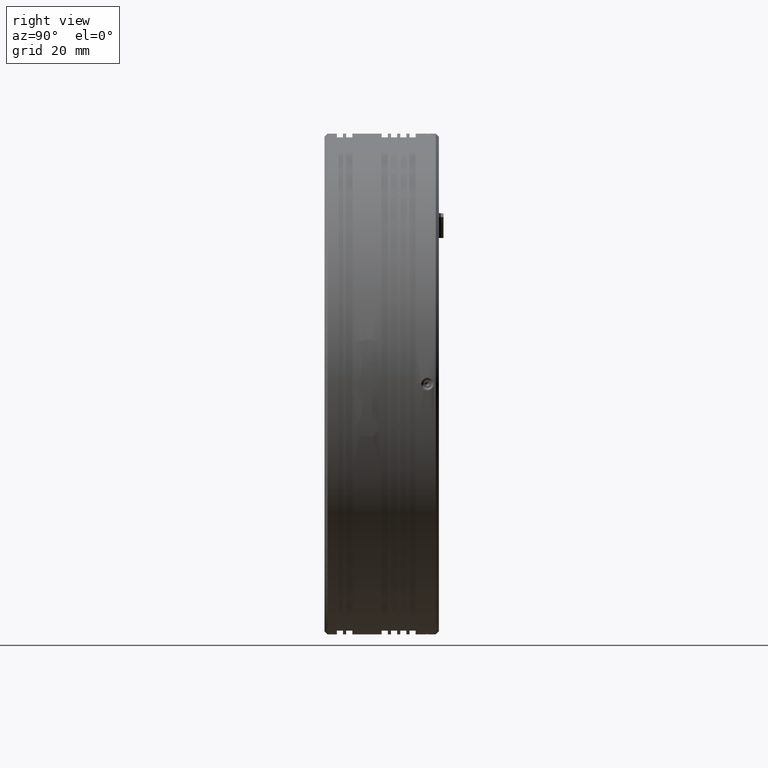
[diagram: clean part render]
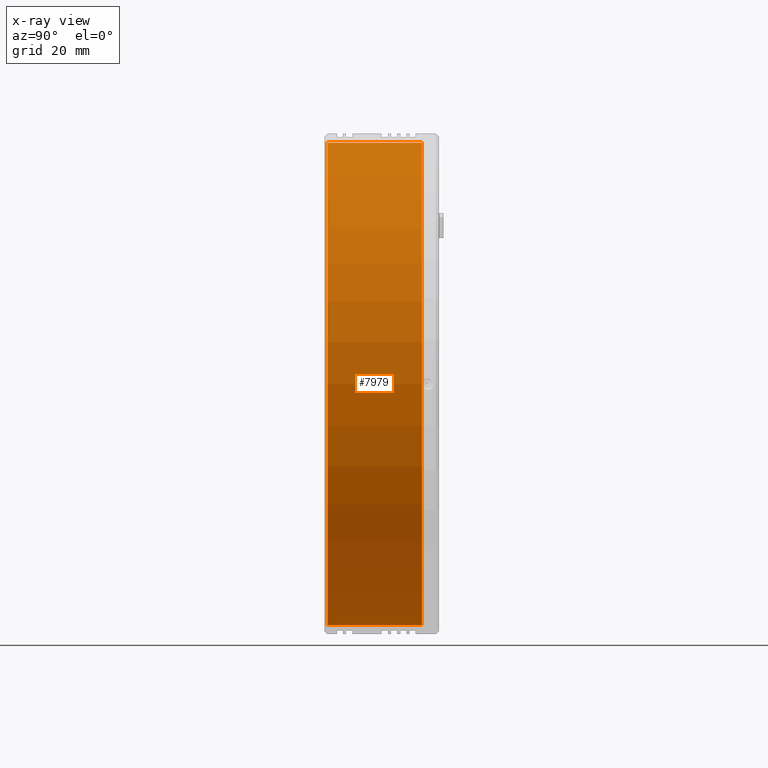
[diagram: x-ray — body ghosted, one internal face saturated and labeled with its STEP entity id]
A machine part, right view, then the same camera in x-ray: the body is ghosted and one INTERNAL B-rep face — a face not visible from any outside direction — is saturated and labeled: STEP entity #7979.
In plain terms, the highlighted cylindrical surface (partial cylindrical patch) has radius 78 mm, axis along (-0, -1, -0).
Its self-contained STEP definition (entity closure, byte-faithful):
#17 = VERTEX_POINT ( 'NONE', #9695 ) ;
#118 = EDGE_CURVE ( 'NONE', #12196, #10430, #817, .T. ) ;
#180 = EDGE_CURVE ( 'NONE', #3098, #17, #9964, .T. ) ;
#817 = CIRCLE ( 'NONE', #9626, 78.00000000000000000 ) ;
#1812 = ORIENTED_EDGE ( 'NONE', *, *, #118, .F. ) ;
#2438 = EDGE_CURVE ( 'NONE', #17, #12196, #10300, .T. ) ;
#2576 = EDGE_CURVE ( 'NONE', #3098, #10430, #7780, .T. ) ;
#2726 = DIRECTION ( 'NONE',  ( -0.0000000000000000000, -1.000000000000000000, -0.0000000000000000000 ) ) ;
#2910 = FACE_OUTER_BOUND ( 'NONE', #13012, .T. ) ;
#3098 = VERTEX_POINT ( 'NONE', #7191 ) ;
#3446 = CARTESIAN_POINT ( 'NONE',  ( -9.785022266880025300, -37.73097191106735000, 78.00000000000000000 ) ) ;
#3976 = CYLINDRICAL_SURFACE ( 'NONE', #11308, 78.00000000000000000 ) ;
#5071 = VECTOR ( 'NONE', #6351, 1000.000000000000000 ) ;
#6351 = DIRECTION ( 'NONE',  ( -0.0000000000000000000, -1.000000000000000000, -0.0000000000000000000 ) ) ;
#6495 = DIRECTION ( 'NONE',  ( -0.0000000000000000000, -1.000000000000000000, -0.0000000000000000000 ) ) ;
#6577 = CARTESIAN_POINT ( 'NONE',  ( -9.785022266880036000, -37.73097191106735000, -78.00000000000000000 ) ) ;
#7122 = DIRECTION ( 'NONE',  ( 0.0000000000000000000, 0.0000000000000000000, -1.000000000000000000 ) ) ;
#7191 = CARTESIAN_POINT ( 'NONE',  ( -9.785022266880036000, 22.37111437184006500, -78.00000000000000000 ) ) ;
#7601 = VECTOR ( 'NONE', #6495, 1000.000000000000000 ) ;
#7699 = DIRECTION ( 'NONE',  ( 0.0000000000000000000, 0.0000000000000000000, -1.000000000000000000 ) ) ;
#7744 = CARTESIAN_POINT ( 'NONE',  ( -9.785022266880036000, -37.73097191106735000, 0.0000000000000000000 ) ) ;
#7771 = ORIENTED_EDGE ( 'NONE', *, *, #180, .F. ) ;
#7780 = LINE ( 'NONE', #6577, #5071 ) ;
#7822 = ORIENTED_EDGE ( 'NONE', *, *, #2576, .T. ) ;
#7979 = ADVANCED_FACE ( 'NONE', ( #2910 ), #3976, .F. ) ;
#9452 = AXIS2_PLACEMENT_3D ( 'NONE', #10918, #10775, #7699 ) ;
#9626 = AXIS2_PLACEMENT_3D ( 'NONE', #12680, #12729, #12774 ) ;
#9695 = CARTESIAN_POINT ( 'NONE',  ( -9.785022266880025300, 22.37111437184006500, 78.00000000000000000 ) ) ;
#9964 = CIRCLE ( 'NONE', #9452, 78.00000000000000000 ) ;
#9971 = CARTESIAN_POINT ( 'NONE',  ( -9.785022266880036000, -8.128885628159936900, -78.00000000000000000 ) ) ;
#10300 = LINE ( 'NONE', #3446, #7601 ) ;
#10430 = VERTEX_POINT ( 'NONE', #9971 ) ;
#10775 = DIRECTION ( 'NONE',  ( -0.0000000000000000000, -1.000000000000000000, -0.0000000000000000000 ) ) ;
#10918 = CARTESIAN_POINT ( 'NONE',  ( -9.785022266880036000, 22.37111437184006500, 0.0000000000000000000 ) ) ;
#11308 = AXIS2_PLACEMENT_3D ( 'NONE', #7744, #2726, #7122 ) ;
#11920 = ORIENTED_EDGE ( 'NONE', *, *, #2438, .F. ) ;
#12196 = VERTEX_POINT ( 'NONE', #12748 ) ;
#12680 = CARTESIAN_POINT ( 'NONE',  ( -9.785022266880036000, -8.128885628159936900, 0.0000000000000000000 ) ) ;
#12729 = DIRECTION ( 'NONE',  ( 0.0000000000000000000, 1.000000000000000000, 0.0000000000000000000 ) ) ;
#12748 = CARTESIAN_POINT ( 'NONE',  ( -9.785022266880025300, -8.128885628159936900, 78.00000000000000000 ) ) ;
#12774 = DIRECTION ( 'NONE',  ( 0.0000000000000000000, 0.0000000000000000000, -1.000000000000000000 ) ) ;
#13012 = EDGE_LOOP ( 'NONE', ( #11920, #7771, #7822, #1812 ) ) ;